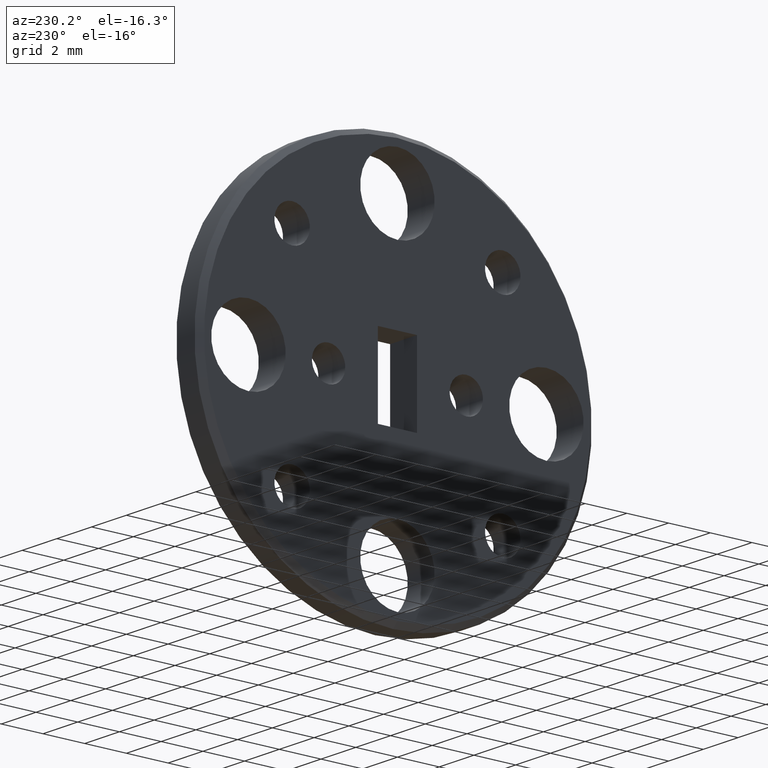
[diagram: clean part render]
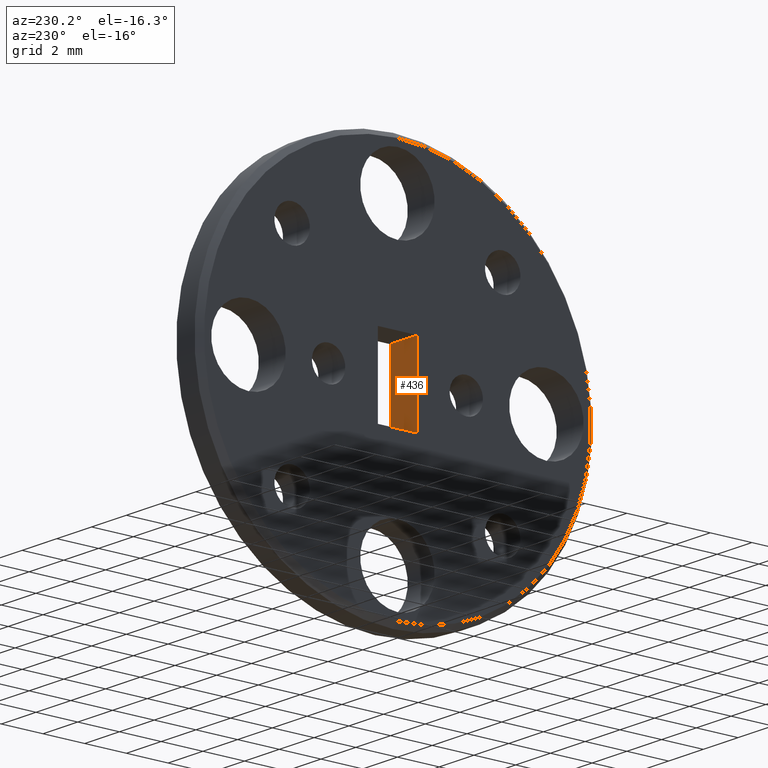
[diagram: same view with one face highlighted and labeled with its STEP entity id]
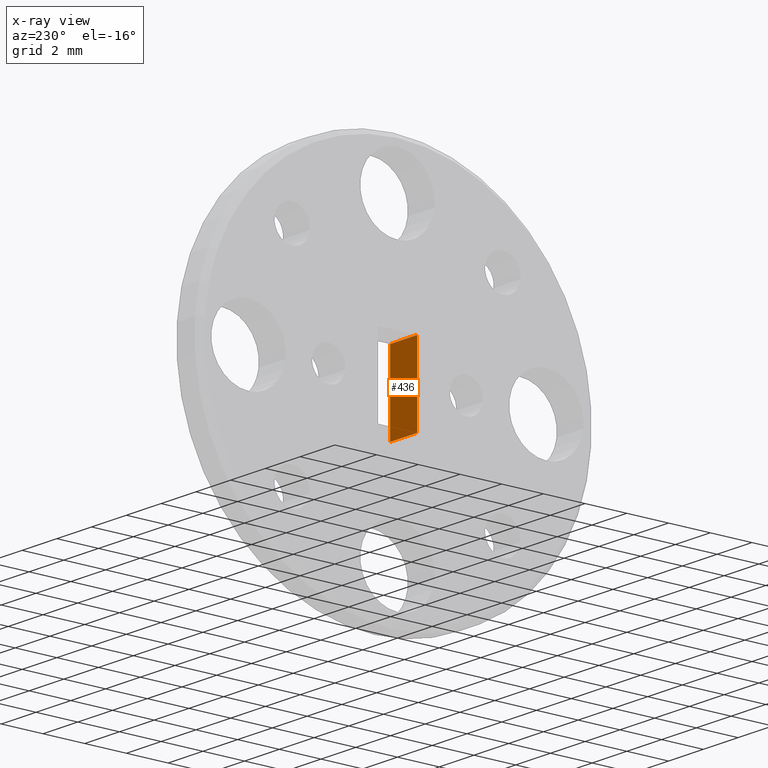
[diagram: x-ray of the same camera — body ghosted, the highlighted face saturated]
A machine part, auxiliary view. The second image highlights one B-rep face of the part: STEP entity #436.
The next image is the same camera in x-ray: the body ghosted, the highlighted face saturated — about 0% of this face is hidden behind the body in this view.
In plain terms, the highlighted planar face has unit normal (0, -1, 0).
Its self-contained STEP definition (entity closure, byte-faithful):
#26 = LINE ( 'NONE', #294, #628 ) ;
#65 = CARTESIAN_POINT ( 'NONE',  ( 0.06100000000000001900, -0.03699999999999999800, -0.07399999999999999600 ) ) ;
#152 = ORIENTED_EDGE ( 'NONE', *, *, #726, .F. ) ;
#159 = DIRECTION ( 'NONE',  ( 0.0000000000000000000, -1.000000000000000000, 0.0000000000000000000 ) ) ;
#228 = DIRECTION ( 'NONE',  ( 0.0000000000000000000, -0.0000000000000000000, -1.000000000000000000 ) ) ;
#241 = EDGE_CURVE ( 'NONE', #959, #527, #846, .T. ) ;
#267 = LINE ( 'NONE', #903, #587 ) ;
#294 = CARTESIAN_POINT ( 'NONE',  ( 0.06100000000000001900, -0.03699999999999999800, 0.07399999999999999600 ) ) ;
#318 = PLANE ( 'NONE',  #462 ) ;
#345 = DIRECTION ( 'NONE',  ( 0.0000000000000000000, 0.0000000000000000000, 1.000000000000000000 ) ) ;
#346 = CARTESIAN_POINT ( 'NONE',  ( 0.06100000000000001900, -0.03699999999999999800, 0.07399999999999999600 ) ) ;
#413 = CARTESIAN_POINT ( 'NONE',  ( 0.06100000000000001900, -0.03699999999999999800, -0.07399999999999999600 ) ) ;
#415 = VERTEX_POINT ( 'NONE', #874 ) ;
#436 = ADVANCED_FACE ( 'NONE', ( #1048 ), #318, .F. ) ;
#462 = AXIS2_PLACEMENT_3D ( 'NONE', #413, #159, #228 ) ;
#482 = DIRECTION ( 'NONE',  ( -1.000000000000000000, -0.0000000000000000000, -0.0000000000000000000 ) ) ;
#497 = CARTESIAN_POINT ( 'NONE',  ( 0.0000000000000000000, -0.03699999999999999800, 0.07399999999999999600 ) ) ;
#527 = VERTEX_POINT ( 'NONE', #346 ) ;
#549 = VECTOR ( 'NONE', #345, 39.37007874015748100 ) ;
#551 = EDGE_CURVE ( 'NONE', #415, #882, #267, .T. ) ;
#559 = CARTESIAN_POINT ( 'NONE',  ( 0.06100000000000001900, -0.03699999999999999800, -0.07399999999999999600 ) ) ;
#565 = EDGE_CURVE ( 'NONE', #959, #415, #955, .T. ) ;
#587 = VECTOR ( 'NONE', #623, 39.37007874015748100 ) ;
#623 = DIRECTION ( 'NONE',  ( 0.0000000000000000000, 0.0000000000000000000, 1.000000000000000000 ) ) ;
#627 = ORIENTED_EDGE ( 'NONE', *, *, #241, .F. ) ;
#628 = VECTOR ( 'NONE', #482, 39.37007874015748100 ) ;
#726 = EDGE_CURVE ( 'NONE', #527, #882, #26, .T. ) ;
#734 = DIRECTION ( 'NONE',  ( -1.000000000000000000, -0.0000000000000000000, -0.0000000000000000000 ) ) ;
#842 = ORIENTED_EDGE ( 'NONE', *, *, #565, .T. ) ;
#846 = LINE ( 'NONE', #65, #549 ) ;
#855 = EDGE_LOOP ( 'NONE', ( #1148, #152, #627, #842 ) ) ;
#874 = CARTESIAN_POINT ( 'NONE',  ( -0.0000000000000000000, -0.03699999999999999800, -0.07399999999999999600 ) ) ;
#882 = VERTEX_POINT ( 'NONE', #497 ) ;
#903 = CARTESIAN_POINT ( 'NONE',  ( -0.0000000000000000000, -0.03699999999999999800, -0.07399999999999999600 ) ) ;
#955 = LINE ( 'NONE', #559, #1015 ) ;
#959 = VERTEX_POINT ( 'NONE', #1127 ) ;
#1015 = VECTOR ( 'NONE', #734, 39.37007874015748100 ) ;
#1048 = FACE_OUTER_BOUND ( 'NONE', #855, .T. ) ;
#1127 = CARTESIAN_POINT ( 'NONE',  ( 0.06100000000000001900, -0.03699999999999999800, -0.07399999999999999600 ) ) ;
#1148 = ORIENTED_EDGE ( 'NONE', *, *, #551, .T. ) ;